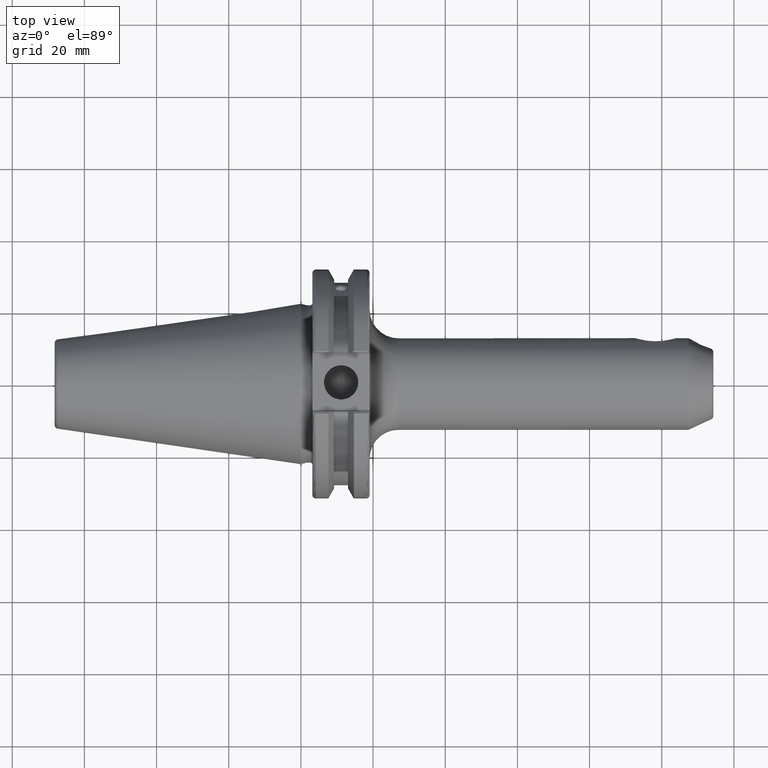
[diagram: clean part render]
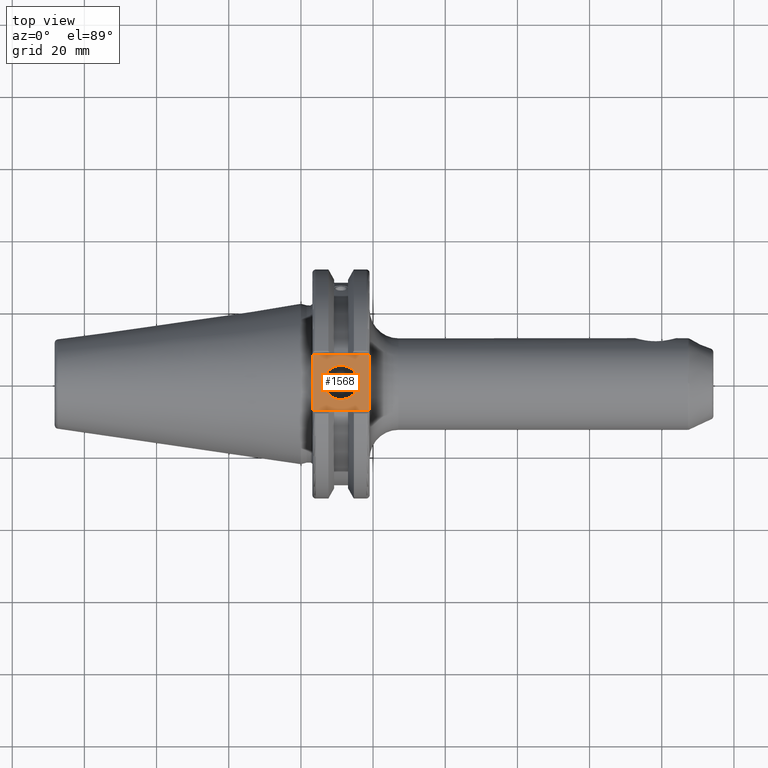
[diagram: same view with one face highlighted and labeled with its STEP entity id]
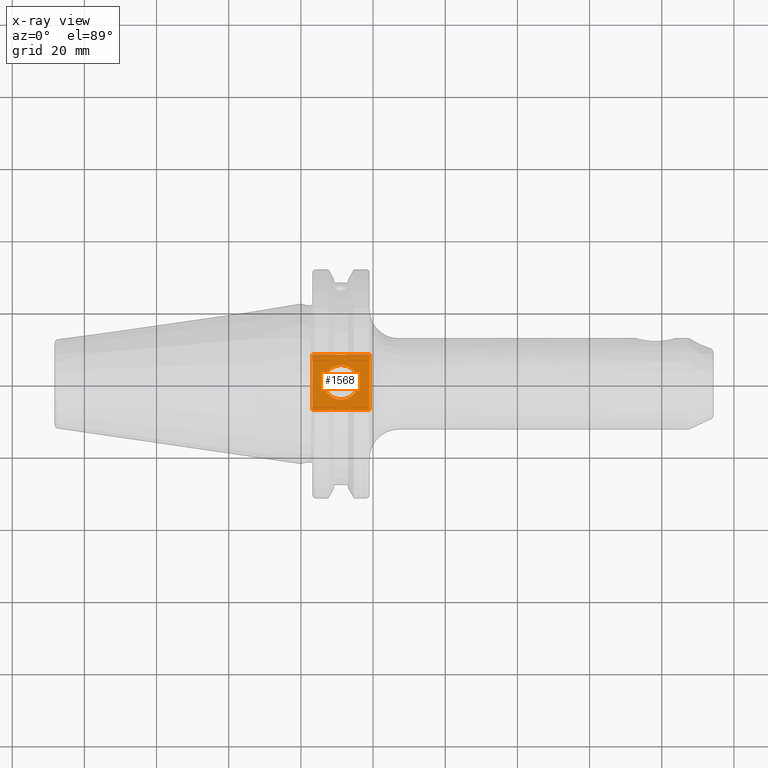
[diagram: x-ray of the same camera — body ghosted, the highlighted face saturated]
A machine part, top view. The second image highlights one B-rep face of the part: STEP entity #1568.
The next image is the same camera in x-ray: the body ghosted, the highlighted face saturated — about 0% of this face is hidden behind the body in this view.
In plain terms, the highlighted planar face has unit normal (0, 0, 1).
Its self-contained STEP definition (entity closure, byte-faithful):
#101=LINE('',#2374,#193);
#143=LINE('',#2795,#235);
#171=LINE('',#3024,#263);
#173=LINE('',#3027,#265);
#193=VECTOR('',#1841,10.);
#235=VECTOR('',#2045,10.);
#263=VECTOR('',#2139,10.);
#265=VECTOR('',#2143,10.);
#321=FACE_BOUND('',#536,.T.);
#355=PLANE('',#1766);
#436=FACE_OUTER_BOUND('',#535,.T.);
#535=EDGE_LOOP('',(#1449,#1450,#1451,#1452));
#536=EDGE_LOOP('',(#1453));
#610=CIRCLE('',#1754,4.7625);
#641=VERTEX_POINT('',#2371);
#642=VERTEX_POINT('',#2373);
#725=VERTEX_POINT('',#2792);
#726=VERTEX_POINT('',#2794);
#772=VERTEX_POINT('',#3063);
#804=EDGE_CURVE('',#641,#642,#101,.T.);
#917=EDGE_CURVE('',#725,#726,#143,.T.);
#980=EDGE_CURVE('',#642,#725,#171,.T.);
#982=EDGE_CURVE('',#726,#641,#173,.T.);
#997=EDGE_CURVE('',#772,#772,#610,.T.);
#1449=ORIENTED_EDGE('',*,*,#980,.F.);
#1450=ORIENTED_EDGE('',*,*,#804,.F.);
#1451=ORIENTED_EDGE('',*,*,#982,.F.);
#1452=ORIENTED_EDGE('',*,*,#917,.F.);
#1453=ORIENTED_EDGE('',*,*,#997,.T.);
#1568=ADVANCED_FACE('',(#436,#321),#355,.T.);
#1754=AXIS2_PLACEMENT_3D('',#3064,#2178,#2179);
#1766=AXIS2_PLACEMENT_3D('',#3077,#2203,#2204);
#1841=DIRECTION('',(0.,-1.,0.));
#2045=DIRECTION('',(0.,1.,0.));
#2139=DIRECTION('',(-1.,1.31581988103722E-16,0.));
#2143=DIRECTION('',(1.,0.,0.));
#2178=DIRECTION('center_axis',(0.,0.,-1.));
#2179=DIRECTION('ref_axis',(1.,0.,0.));
#2203=DIRECTION('center_axis',(0.,0.,1.));
#2204=DIRECTION('ref_axis',(1.,0.,0.));
#2371=CARTESIAN_POINT('',(19.05,7.69,25.));
#2373=CARTESIAN_POINT('',(19.05,-7.69,25.));
#2374=CARTESIAN_POINT('',(19.05,0.,25.));
#2792=CARTESIAN_POINT('',(3.175,-7.68999999999999,25.));
#2794=CARTESIAN_POINT('',(3.175,7.69,25.));
#2795=CARTESIAN_POINT('',(3.175,15.875,25.));
#3024=CARTESIAN_POINT('',(9.44125,-7.69,25.));
#3027=CARTESIAN_POINT('',(17.87875,7.69,25.));
#3063=CARTESIAN_POINT('',(6.3716,-5.83238038093927E-16,25.));
#3064=CARTESIAN_POINT('Origin',(11.1341,0.,25.));
#3077=CARTESIAN_POINT('Origin',(15.7075,0.,25.));